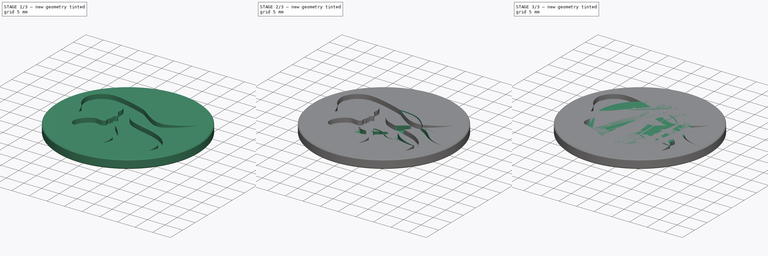
[diagram: build sequence overview — one tinted view per stage of 3, left to right]
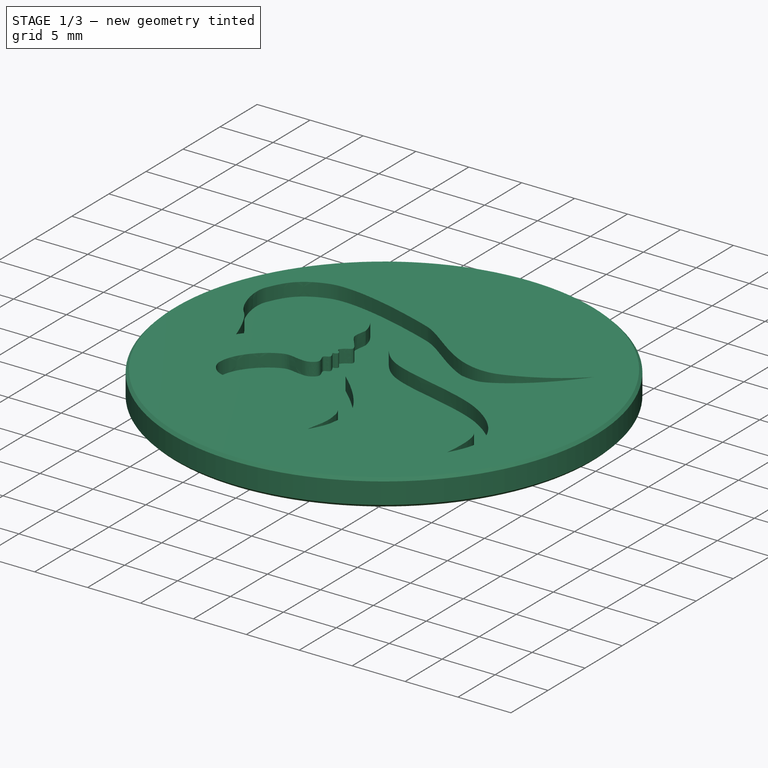
[diagram: stage 1 of 3 — iso view after this stage's code; geometry added in this stage tinted green]
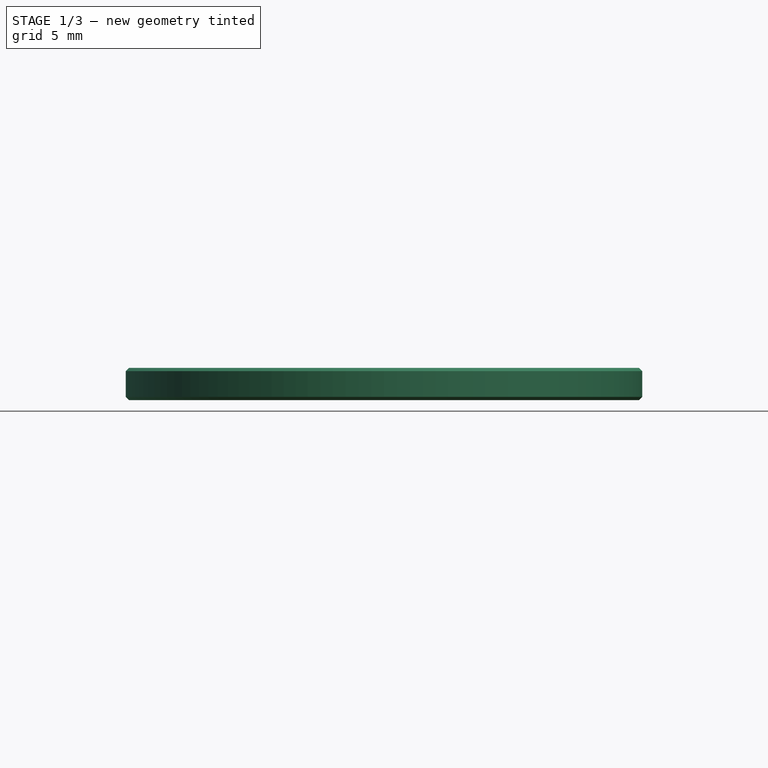
[diagram: stage 1 of 3 — front view after this stage's code; geometry added in this stage tinted green]
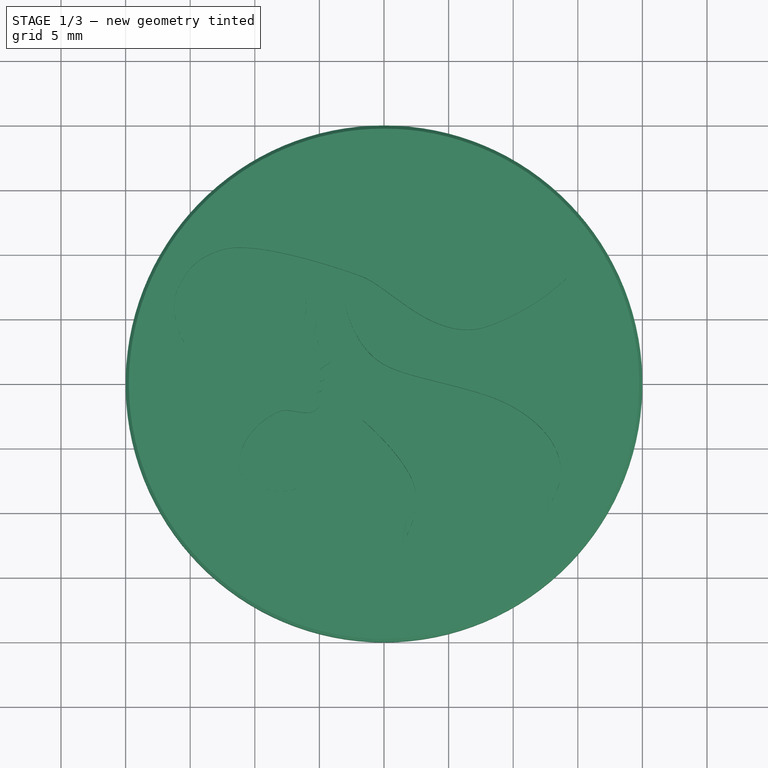
[diagram: stage 1 of 3 — top view after this stage's code; geometry added in this stage tinted green]
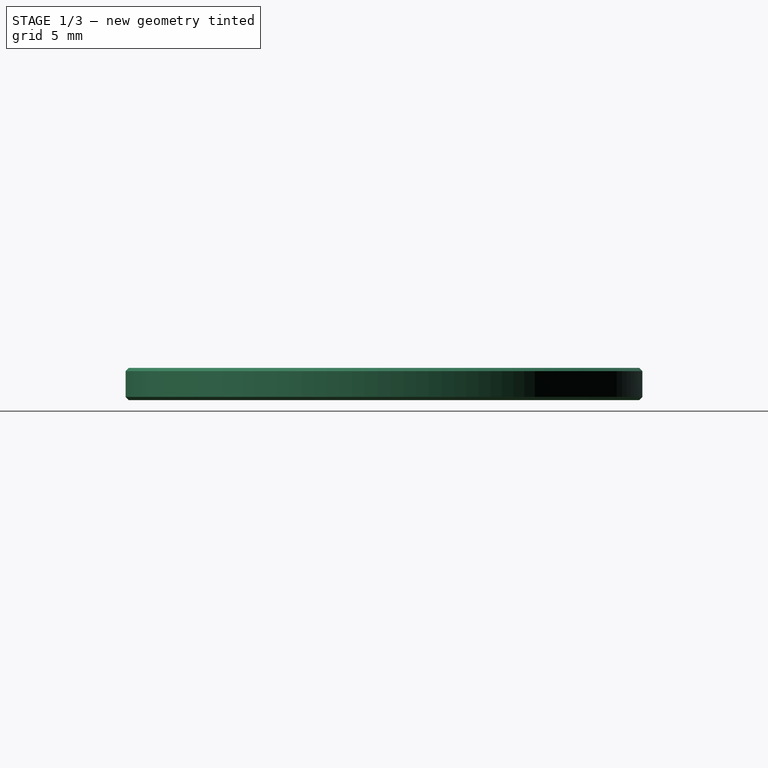
[diagram: stage 1 of 3 — right view after this stage's code; geometry added in this stage tinted green]
FCSTD DOCUMENT  (FreeCAD 0.20R29603 (Git))
Label: woman-hair-coin-44974
License: All rights reserved
LicenseURL: http://en.wikipedia.org/wiki/All_rights_reserved
objects: Sketcher::SketchObject×16, PartDesign::Plane×6, Part::Feature×6, App::DocumentObjectGroup×5, Part::FeaturePython×4, PartDesign::Pocket×4, PartDesign::Revolution×3, PartDesign::Body×3, App::TextDocument×1, Spreadsheet::Sheet×1
note: 49 computed .brp shape members not serialized (recipe doc carries the construction recipe); baked Part::Feature solids carry a one-line shape summary decoded from their .brp

FEATURE [App::TextDocument] Text_document  label="Text document"
  Text = https://publicdomainvectors.org/en/free-clipart/Long-haired-woman/44974.html
FEATURE [Spreadsheet::Sheet] Spreadsheet
  cells = A2=Vector X center; B2=vec_x; C2(dim_vec_x)==-17 mm; A3=Vector Y center; B3=vec_y; C3(dim_vec_y)==11 mm; A4=Coin radius; B4=coin_r; C4(dim_coin_r)==20 mm; A5=Coin height; B5=coin_h; C5(dim_coin_h)==2.5 mm; D5==2.5 mm; A6=Engrave depth; B6=engrave_h; C6(dim_engrave_h)==dim_coin_h / 2; A7=Chamfer width; B7=chamfer_w; C7(dim_chamfer_w)==dim_coin_h / 10; A8=Chamfer radius; B8=chamfer_r; C8(dim_chamfer_r)==dim_coin_r - dim_chamfer_w; A9=SVG Scale; B9=svg_scale; C9(svg_scale)=0.06; A11=Edge dimple radius; B11=dimple_r; C11(dim_dimple_r)==0.5 mm; A12=Edge dimple count; B12=dimple_count; C12(dim_dimple_count)=64; A15=Coin dimensions; A16=40mm novelty diameter; B16=nov_d; C16(dim_nov_d)==40 mm; A17=novelty radius; B17=nov_r; C17(dim_nov_r)==dim_nov_d / 2; A18=novelty thickness; B18=nov_thick; C18(dim_nov_thick)==2.5 mm; A19=novelty scale; B19=nov_scale; C19=1; A21=Quarter diameter; B21=qtr_d; C21(dim_qtr_d)==0.955 "; D21==dim_qtr_d; A22=Quarter radius; B22=qtr_r; C22(dim_qtr_r)==dim_qtr_d / 2; D22==dim_qtr_r; A23=Quarter chamfer radius; B23=qtr_cr; C23(dim_qtr_cr)==dim_qtr_r - dim_chamfer_w; A24=Quarter thickness; B24=qtr_thick; C24(dim_qtr_thick)==1.75 mm; A25=Quarter engrave height; B25=qtr_eh; C25(dim_qtr_eh)==dim_qtr_thick / 2; A26=Quarter factor; B26=qtr_x; C26(dim_qtr_x)==dim_qtr_r / dim_nov_r; A28=Euro diameter; B28=euro_d; C28(dim_euro_d)==23.25 mm; A29=Euro radius; B29=euro_r; C29(dim_euro_r)==dim_euro_d / 2; A30=Euro chamfer radius; B30=euro_cr; C30(dim_euro_cr)==dim_euro_r - dim_chamfer_w; A31=Euro thickness; B31=euro_thick; C31(dim_euro_thick)==2.33 mm; A32=Euro engrave height; B32=euro_eh; C32(dim_euro_eh)==dim_euro_thick / 2; A33=Euro mass; C33==7.5 g; A34=Euro factor; B34=euro_x; C34(dim_euro_x)==dim_euro_r / dim_nov_r; A35=Euro scale; B35=euro_scale; A37=Spanish doubloon diameter; B37=doubloon_d; C37(dim_doubloon_d)==0.75 "; A38=Doubloon radius; B38=doubloon_r; C38(dim_doubloon_r)==dim_doubloon_d / 2; A39=Doubloon thickness; B39=doubloon_thick; A40=Doubloon mass; C40==6.766 g; D40=0.218 troy ou; E40=6.2 g gold; A41=Doubloon scale; B41=doubloon scale; A43=US novelty diameter; C43(us_nov_d)==1.5 "
FEATURE [PartDesign::Plane] DatumPlane  label="BaseXYDatumPlane"
  Length = 60
  MapMode = 5
  ResizeMode = 0
  Support = -> [XY_Plane]
  Width = 60
FEATURE [Sketcher::SketchObject] Sketch001  label="CircleSketch"
  FullyConstrained = true
  MapMode = 5
  Support = -> [DatumPlane]
  expr: Constraints[1] = Spreadsheet.dim_chamfer_r
  expr: Constraints[3] = Spreadsheet.dim_coin_r - 1 mm
  sketch-geometry (6):
    g0: Circle CenterX=0 CenterY=0 CenterZ=0 NormalX=0 NormalY=0 NormalZ=1 AngleXU=0 Radius=19.75
    g1: Circle CenterX=0 CenterY=0 CenterZ=0 NormalX=0 NormalY=0 NormalZ=1 AngleXU=0 Radius=19
    g2: LineSegment StartX=0 StartY=0 StartZ=0 EndX=0 EndY=19 EndZ=0
    g3: LineSegment StartX=0 StartY=0 StartZ=0 EndX=0 EndY=-19 EndZ=0
    g4: LineSegment StartX=0 StartY=0 StartZ=0 EndX=-19 EndY=0 EndZ=0
    g5: LineSegment StartX=0 StartY=0 StartZ=0 EndX=19 EndY=0 EndZ=0
  constraints (16):
    c: Coincident(g0,g-1)
    c: Radius(g0) = 19.75
    c: Coincident(g1,g0)
    c: Radius(g1) = 19
    c: Coincident(g2,g0)
    c: PointOnObject(g2,g1)
    c: Vertical(g2)
    c: Coincident(g3,g0)
    c: PointOnObject(g3,g1)
    c: Vertical(g3)
    c: Coincident(g4,g0)
    c: PointOnObject(g4,g1)
    c: Horizontal(g4)
    c: Coincident(g5,g0)
    c: PointOnObject(g5,g1)
    c: Horizontal(g5)
FEATURE [PartDesign::Plane] DatumPlane001  label="ProfileYZDatumPlane"
  Length = 60
  MapMode = 5
  Placement = pos=(0,0,0) rot=(0.57735,0.57735,0.57735;2.0944rad)
  ResizeMode = 0
  Support = -> [YZ_Plane]
  Width = 60
FEATURE [Sketcher::SketchObject] Sketch  label="CoinProfileSketch"
  FullyConstrained = true
  MapMode = 5
  Placement = pos=(0,0,0) rot=(0.57735,0.57735,0.57735;2.0944rad)
  Support = -> [DatumPlane001]
  expr: Constraints[10] = Spreadsheet.dim_chamfer_w
  expr: Constraints[12] = Spreadsheet.dim_coin_h
  expr: Constraints[13] = Spreadsheet.dim_coin_r
  expr: Constraints[14] = Spreadsheet.dim_coin_r
  expr: Constraints[15] = Spreadsheet.dim_coin_h
  expr: Constraints[16] = Spreadsheet.dim_chamfer_r
  sketch-geometry (11):
    g0: LineSegment StartX=0 StartY=0 StartZ=0 EndX=0 EndY=-2.5 EndZ=0
    g1: LineSegment StartX=19.75 StartY=0 StartZ=0 EndX=20 EndY=-0.25 EndZ=0
    g2: LineSegment StartX=20 StartY=-0.25 StartZ=0 EndX=20 EndY=-2.25 EndZ=0
    g3: LineSegment StartX=20.25 StartY=0 StartZ=0 EndX=20 EndY=0 EndZ=0
    g4: LineSegment StartX=20 StartY=0 StartZ=0 EndX=20 EndY=-0.25 EndZ=0
    g5: LineSegment StartX=20 StartY=-2.25 StartZ=0 EndX=20 EndY=-2.5 EndZ=0
    g6: LineSegment StartX=0 StartY=0 StartZ=0 EndX=19.75 EndY=0 EndZ=0
    g7: LineSegment StartX=19.75 StartY=0 StartZ=0 EndX=20 EndY=0 EndZ=0
    g8: LineSegment StartX=20 StartY=-2.5 StartZ=0 EndX=19.75 EndY=-2.5 EndZ=0
    g9: LineSegment StartX=19.75 StartY=-2.5 StartZ=0 EndX=0 EndY=-2.5 EndZ=0
    g10: LineSegment StartX=19.75 StartY=-2.5 StartZ=0 EndX=20 EndY=-2.25 EndZ=0
  constraints (31):
    c: Vertical(g0)
    c: Coincident(g1,g2)
    c: Vertical(g2)
    c: Horizontal(g3)
    c: Coincident(g4,g3)
    c: Coincident(g4,g1)
    c: Coincident(g5,g2)
    c: Vertical(g5)
    c: Vertical(g4)
    c: Equal(g3,g4)
    c: DistanceY(g5,g5) = 0.25
    c: Equal(g5,g4)
    c: DistanceY(g5,g3) = 2.5
    c: DistanceX(g0,g5) = 20
    c: DistanceX(g-1,g3) = 20
    c: DistanceY(g0,g-1) = 2.5
    c: DistanceX(g1) = 19.75
    c: Coincident(g6,g0)
    c: Coincident(g6,g1)
    c: Horizontal(g6)
    c: Coincident(g7,g1)
    c: Coincident(g7,g3)
    c: Horizontal(g7)
    c: Coincident(g8,g5)
    c: Horizontal(g8)
    c: Coincident(g9,g8)
    c: Coincident(g9,g0)
    c: Horizontal(g9)
    c: Coincident(g10,g9)
    c: Coincident(g10,g2)
    c: Equal(g9,g6)
FEATURE [PartDesign::Revolution] Revolution  label="CoinRevolution"
  Angle = 360
  Axis = (-1e-16,1e-16,1)
  Base = (0,0,0)
  Placement = pos=(0,0,0) rot=(0.57735,0.57735,0.57735;2.0944rad)
  Profile = -> Sketch
  ReferenceAxis = -> Sketch [V_Axis]
  Reversed = true
FEATURE [Sketcher::SketchObject] Sketch012  label="EuroCircleSketch"
  FullyConstrained = true
  MapMode = 5
  Support = -> [DatumPlane004]
  expr: Constraints[1] = Spreadsheet.dim_euro_cr
  expr: Constraints[3] = Spreadsheet.dim_euro_r - 1 mm
  sketch-geometry (6):
    g0: Circle CenterX=0 CenterY=0 CenterZ=0 NormalX=0 NormalY=0 NormalZ=1 AngleXU=0 Radius=11.375
    g1: Circle CenterX=0 CenterY=0 CenterZ=0 NormalX=0 NormalY=0 NormalZ=1 AngleXU=0 Radius=10.625
    g2: LineSegment StartX=0 StartY=0 StartZ=0 EndX=0 EndY=10.625 EndZ=0
    g3: LineSegment StartX=0 StartY=0 StartZ=0 EndX=0 EndY=-10.625 EndZ=0
    g4: LineSegment StartX=0 StartY=0 StartZ=0 EndX=-10.625 EndY=0 EndZ=0
    g5: LineSegment StartX=0 StartY=0 StartZ=0 EndX=10.625 EndY=0 EndZ=0
  constraints (16):
    c: Coincident(g0,g-1)
    c: Radius(g0) = 11.375
    c: Coincident(g1,g0)
    c: Radius(g1) = 10.625
    c: Coincident(g2,g0)
    c: PointOnObject(g2,g1)
    c: Vertical(g2)
    c: Coincident(g3,g0)
    c: PointOnObject(g3,g1)
    c: Vertical(g3)
    c: Coincident(g4,g0)
    c: PointOnObject(g4,g1)
    c: Horizontal(g4)
    c: Coincident(g5,g0)
    c: PointOnObject(g5,g1)
    c: Horizontal(g5)
FEATURE [Sketcher::SketchObject] Sketch013  label="EuroEdgeProfileSketch"
  FullyConstrained = true
  MapMode = 5
  Placement = pos=(0,0,0) rot=(0.57735,0.57735,0.57735;2.0944rad)
  Support = -> [DatumPlane005]
  expr: Constraints[10] = Spreadsheet.dim_euro_r
  expr: Constraints[11] = Spreadsheet.dim_euro_thick
  expr: Constraints[17] = Spreadsheet.dim_euro_cr
  expr: Constraints[6] = Spreadsheet.dim_chamfer_w
  expr: Constraints[8] = Spreadsheet.dim_euro_thick
  sketch-geometry (13):
    g0: LineSegment StartX=0 StartY=-2e-16 StartZ=0 EndX=0 EndY=-2.33 EndZ=0
    g1: LineSegment StartX=11.625 StartY=-0.25 StartZ=0 EndX=11.625 EndY=-2.08 EndZ=0
    g2: LineSegment StartX=11.625 StartY=-2e-16 StartZ=0 EndX=11.625 EndY=-0.25 EndZ=0
    g3: LineSegment StartX=11.625 StartY=-2.08 StartZ=0 EndX=11.625 EndY=-2.33 EndZ=0
    g4: LineSegment StartX=0 StartY=-2e-16 StartZ=0 EndX=10.625 EndY=-2e-16 EndZ=0
    g5: LineSegment StartX=10.625 StartY=-2e-16 StartZ=0 EndX=10.625 EndY=-2.33 EndZ=0
    g6: LineSegment StartX=10.625 StartY=-2e-16 StartZ=0 EndX=11.375 EndY=-2e-16 EndZ=0
    g7: LineSegment StartX=11.375 StartY=-2e-16 StartZ=0 EndX=11.625 EndY=-0.25 EndZ=0
    g8: LineSegment StartX=11.375 StartY=-2e-16 StartZ=0 EndX=11.625 EndY=-2e-16 EndZ=0
    g9: LineSegment StartX=11.625 StartY=-2.33 StartZ=0 EndX=11.375 EndY=-2.33 EndZ=0
    g10: LineSegment StartX=10.625 StartY=-2.33 StartZ=0 EndX=0 EndY=-2.33 EndZ=0
    g11: LineSegment StartX=11.375 StartY=-2.33 StartZ=0 EndX=11.625 EndY=-2.08 EndZ=0
    g12: LineSegment StartX=11.375 StartY=-2.33 StartZ=0 EndX=10.625 EndY=-2.33 EndZ=0
  constraints (37):
    c: Vertical(g0)
    c: Coincident(g0,g4)
    c: Vertical(g1)
    c: Coincident(g3,g1)
    c: Vertical(g3)
    c: Vertical(g2)
    c: DistanceY(g3,g3) = 0.25
    c: Equal(g3,g2)
    c: DistanceY(g3,g2) = 2.33
    c: DistanceX(g0,g3) = 11.625
    c: DistanceX(g-1,g2) = 11.625
    c: DistanceY(g0,g-1) = 2.33
    c: Horizontal(g4)
    c: Vertical(g5)
    c: DistanceX(g4,g2) = 1
    c: Coincident(g6,g5)
    c: Horizontal(g6)
    c: DistanceX(g0,g6) = 11.375
    c: Coincident(g7,g6)
    c: Coincident(g7,g1)
    c: Coincident(g8,g6)
    c: Coincident(g8,g2)
    c: Horizontal(g8)
    c: Coincident(g4,g5)
    c: Coincident(g2,g1)
    c: Coincident(g9,g3)
    c: Horizontal(g9)
    c: Coincident(g10,g5)
    c: Coincident(g10,g0)
    c: Horizontal(g10)
    c: Coincident(g11,g9)
    c: Coincident(g11,g1)
    c: Coincident(g12,g11)
    c: Coincident(g12,g5)
    c: Horizontal(g12)
    c: Equal(g12,g6)
    c: Equal(g8,g2)
FEATURE [Sketcher::SketchObject] Sketch014  label="EuroEdgeDimpleSketch"
  FullyConstrained = true
  MapMode = 5
  Support = -> [DatumPlane004]
  expr: Constraints[2] = Spreadsheet.dim_euro_r
  sketch-geometry (2):
    g0: LineSegment StartX=0 StartY=0 StartZ=0 EndX=11.625 EndY=0 EndZ=0
    g1: Circle CenterX=11.625 CenterY=0 CenterZ=0 NormalX=0 NormalY=0 NormalZ=1 AngleXU=0 Radius=0.5
  constraints (5):
    c: Horizontal(g0)
    c: Coincident(g1,g0)
    c: DistanceX(g0,g0) = 11.625
    c: Coincident(g0,g-1)
    c: Radius(g1) = 0.5
FEATURE [PartDesign::Body] Body002  label="EuroBody"
  Group = -> [DatumPlane004,Sketch012,DatumPlane005,Sketch011,Revolution002,Sketch013,Sketch014]
  Origin = -> Origin002
  Tip = -> Revolution002
FEATURE [Part::Feature] path4200
  shape: bbox 166.5 x 50.88 x 3.397e-07 mm, 0 faces, 0 solids (baked)
FEATURE [Part::Feature] path4206
  shape: bbox 211.8 x 66.21 x 3.397e-07 mm, 0 faces, 0 solids (baked)
FEATURE [App::DocumentObjectGroup] Group010  label="Hair2Group"
  Group = -> [path4206]
FEATURE [Part::Feature] path4224
  shape: bbox 240.4 x 68.97 x 3.397e-07 mm, 0 faces, 0 solids (baked)
FEATURE [Part::Feature] path4230
  shape: bbox 198.3 x 61.69 x 3.397e-07 mm, 0 faces, 0 solids (baked)
FEATURE [App::DocumentObjectGroup] Group009  label="Hair1Group"
  Group = -> [path4200,path4230]
FEATURE [Part::Feature] path4236
  shape: bbox 154.3 x 35.03 x 3.397e-07 mm, 0 faces, 0 solids (baked)
FEATURE [App::DocumentObjectGroup] Group011  label="Hair3Group"
  Group = -> [path4224,path4236]
FEATURE [Part::Feature] path4242
  shape: bbox 339.4 x 258.7 x 3.397e-07 mm, 0 faces, 0 solids (baked)
FEATURE [App::DocumentObjectGroup] Group  label="VectorOutlineGroup"
  Group = -> [path4242]
FEATURE [Part::FeaturePython] Clone005  label="OutlineResize009"  # Draft clone (typed FeaturePython)
  AttacherType = Attacher::AttachEngine3D
  Fuse = false
  Objects = -> [path4242]
  Placement = pos=(-17,11,0) rot=(0,0,1;0rad)
  Scale = (0.09,0.09,0.09)
  expr: .Placement.Base.x = Spreadsheet.dim_vec_x
  expr: .Placement.Base.y = Spreadsheet.dim_vec_y
FEATURE [Part::FeaturePython] Clone006  label="Hair3Resize009"  # Draft clone (typed FeaturePython)
  AttacherType = Attacher::AttachEngine3D
  Fuse = false
  Objects = -> [path4224,path4236]
  Placement = pos=(-17,11,0) rot=(0,0,1;0rad)
  Scale = (0.09,0.09,0.09)
  expr: .Placement.Base.x = Spreadsheet.dim_vec_x
  expr: .Placement.Base.y = Spreadsheet.dim_vec_y
FEATURE [Part::FeaturePython] Clone  label="Hair1Resize009"  # Draft clone (typed FeaturePython)
  AttacherType = Attacher::AttachEngine3D
  Fuse = false
  Objects = -> [path4200,path4230]
  Placement = pos=(-17,11,0) rot=(0,0,1;0rad)
  Scale = (0.09,0.09,0.09)
  expr: .Placement.Base.x = Spreadsheet.dim_vec_x
  expr: .Placement.Base.y = Spreadsheet.dim_vec_y
FEATURE [Part::FeaturePython] Clone007  label="Hair2Resize009"  # Draft clone (typed FeaturePython)
  AttacherType = Attacher::AttachEngine3D
  Fuse = false
  Objects = -> [path4206]
  Placement = pos=(-17,11,0) rot=(0,0,1;0rad)
  Scale = (0.09,0.09,0.09)
  expr: .Placement.Base.x = Spreadsheet.dim_vec_x
  expr: .Placement.Base.y = Spreadsheet.dim_vec_y
FEATURE [App::DocumentObjectGroup] Group012  label="ResizeGroup"
  Group = -> [Clone005,Clone006,Clone,Clone007]
FEATURE [Sketcher::SketchObject] Sketch015
  FullyConstrained = false
  sketch-geometry (43):
    g0: BSplineCurve PolesCount=4 KnotsCount=2 Degree=3 IsPeriodic=0
    g1: BSplineCurve PolesCount=4 KnotsCount=2 Degree=3 IsPeriodic=0
    g2: BSplineCurve PolesCount=4 KnotsCount=2 Degree=3 IsPeriodic=0
    g3: BSplineCurve PolesCount=4 KnotsCount=2 Degree=3 IsPeriodic=0
    g4: BSplineCurve PolesCount=4 KnotsCount=2 Degree=3 IsPeriodic=0
    g5: BSplineCurve PolesCount=4 KnotsCount=2 Degree=3 IsPeriodic=0
    g6: BSplineCurve PolesCount=4 KnotsCount=2 Degree=3 IsPeriodic=0
    g7: BSplineCurve PolesCount=4 KnotsCount=2 Degree=3 IsPeriodic=0
    g8: BSplineCurve PolesCount=4 KnotsCount=2 Degree=3 IsPeriodic=0
    g9: BSplineCurve PolesCount=4 KnotsCount=2 Degree=3 IsPeriodic=0
    g10: BSplineCurve PolesCount=4 KnotsCount=2 Degree=3 IsPeriodic=0
    g11: BSplineCurve PolesCount=4 KnotsCount=2 Degree=3 IsPeriodic=0
    g12: BSplineCurve PolesCount=4 KnotsCount=2 Degree=3 IsPeriodic=0
    g13: BSplineCurve PolesCount=4 KnotsCount=2 Degree=3 IsPeriodic=0
    g14: BSplineCurve PolesCount=4 KnotsCount=2 Degree=3 IsPeriodic=0
    g15: BSplineCurve PolesCount=4 KnotsCount=2 Degree=3 IsPeriodic=0
    g16: BSplineCurve PolesCount=4 KnotsCount=2 Degree=3 IsPeriodic=0
    g17: BSplineCurve PolesCount=4 KnotsCount=2 Degree=3 IsPeriodic=0
    g18: BSplineCurve PolesCount=4 KnotsCount=2 Degree=3 IsPeriodic=0
    g19: BSplineCurve PolesCount=4 KnotsCount=2 Degree=3 IsPeriodic=0
    g20: BSplineCurve PolesCount=4 KnotsCount=2 Degree=3 IsPeriodic=0
    g21: BSplineCurve PolesCount=4 KnotsCount=2 Degree=3 IsPeriodic=0
    g22: BSplineCurve PolesCount=4 KnotsCount=2 Degree=3 IsPeriodic=0
    g23: BSplineCurve PolesCount=4 KnotsCount=2 Degree=3 IsPeriodic=0
    g24: BSplineCurve PolesCount=4 KnotsCount=2 Degree=3 IsPeriodic=0
    g25: BSplineCurve PolesCount=4 KnotsCount=2 Degree=3 IsPeriodic=0
    g26: BSplineCurve PolesCount=4 KnotsCount=2 Degree=3 IsPeriodic=0
    g27: BSplineCurve PolesCount=4 KnotsCount=2 Degree=3 IsPeriodic=0
    g28: BSplineCurve PolesCount=4 KnotsCount=2 Degree=3 IsPeriodic=0
    g29: BSplineCurve PolesCount=4 KnotsCount=2 Degree=3 IsPeriodic=0
    g30: BSplineCurve PolesCount=4 KnotsCount=2 Degree=3 IsPeriodic=0
    g31: BSplineCurve PolesCount=4 KnotsCount=2 Degree=3 IsPeriodic=0
    g32: BSplineCurve PolesCount=4 KnotsCount=2 Degree=3 IsPeriodic=0
    g33: BSplineCurve PolesCount=4 KnotsCount=2 Degree=3 IsPeriodic=0
    g34: BSplineCurve PolesCount=4 KnotsCount=2 Degree=3 IsPeriodic=0
    g35: BSplineCurve PolesCount=4 KnotsCount=2 Degree=3 IsPeriodic=0
    g36: BSplineCurve PolesCount=4 KnotsCount=2 Degree=3 IsPeriodic=0
    g37: BSplineCurve PolesCount=4 KnotsCount=2 Degree=3 IsPeriodic=0
    g38: BSplineCurve PolesCount=4 KnotsCount=2 Degree=3 IsPeriodic=0
    g39: BSplineCurve PolesCount=4 KnotsCount=2 Degree=3 IsPeriodic=0
    g40: BSplineCurve PolesCount=4 KnotsCount=2 Degree=3 IsPeriodic=0
    g41: BSplineCurve PolesCount=4 KnotsCount=2 Degree=3 IsPeriodic=0
    g42: BSplineCurve PolesCount=2 KnotsCount=2 Degree=1 IsPeriodic=0
  constraints (43):
    c: Coincident(g0,g1)
    c: Coincident(g1,g2)
    c: Coincident(g2,g3)
    c: Coincident(g3,g4)
    c: Coincident(g4,g5)
    c: Coincident(g5,g6)
    c: Coincident(g6,g7)
    c: Coincident(g7,g8)
    c: Coincident(g8,g9)
    c: Coincident(g9,g10)
    c: Coincident(g10,g11)
    c: Coincident(g11,g12)
    c: Coincident(g12,g13)
    c: Coincident(g13,g14)
    c: Coincident(g14,g15)
    c: Coincident(g15,g16)
    c: Coincident(g16,g17)
    c: Coincident(g17,g18)
    c: Coincident(g18,g19)
    c: Coincident(g19,g20)
    c: Coincident(g20,g21)
    c: Coincident(g21,g22)
    c: Coincident(g22,g23)
    c: Coincident(g23,g24)
    c: Coincident(g24,g25)
    c: Coincident(g25,g26)
    c: Coincident(g26,g27)
    c: Coincident(g27,g28)
    c: Coincident(g28,g29)
    c: Coincident(g29,g30)
    c: Coincident(g30,g31)
    c: Coincident(g31,g32)
    c: Coincident(g32,g33)
    c: Coincident(g33,g34)
    c: Coincident(g34,g35)
    c: Coincident(g35,g36)
    c: Coincident(g36,g37)
    c: Coincident(g37,g38)
    c: Coincident(g38,g39)
    c: Coincident(g39,g40)
    c: Coincident(g40,g41)
    c: Coincident(g41,g42)
    c: Coincident(g42,g0)
FEATURE [Sketcher::SketchObject] Sketch016
  FullyConstrained = false
  sketch-geometry (36):
    g0: BSplineCurve PolesCount=4 KnotsCount=2 Degree=3 IsPeriodic=0
    g1: BSplineCurve PolesCount=4 KnotsCount=2 Degree=3 IsPeriodic=0
    g2: BSplineCurve PolesCount=4 KnotsCount=2 Degree=3 IsPeriodic=0
    g3: BSplineCurve PolesCount=4 KnotsCount=2 Degree=3 IsPeriodic=0
    g4: BSplineCurve PolesCount=4 KnotsCount=2 Degree=3 IsPeriodic=0
    g5: BSplineCurve PolesCount=4 KnotsCount=2 Degree=3 IsPeriodic=0
    g6: BSplineCurve PolesCount=4 KnotsCount=2 Degree=3 IsPeriodic=0
    g7: BSplineCurve PolesCount=4 KnotsCount=2 Degree=3 IsPeriodic=0
    g8: BSplineCurve PolesCount=4 KnotsCount=2 Degree=3 IsPeriodic=0
    g9: BSplineCurve PolesCount=4 KnotsCount=2 Degree=3 IsPeriodic=0
    g10: BSplineCurve PolesCount=4 KnotsCount=2 Degree=3 IsPeriodic=0
    g11: BSplineCurve PolesCount=4 KnotsCount=2 Degree=3 IsPeriodic=0
    g12: BSplineCurve PolesCount=4 KnotsCount=2 Degree=3 IsPeriodic=0
    g13: BSplineCurve PolesCount=4 KnotsCount=2 Degree=3 IsPeriodic=0
    g14: BSplineCurve PolesCount=4 KnotsCount=2 Degree=3 IsPeriodic=0
    g15: BSplineCurve PolesCount=4 KnotsCount=2 Degree=3 IsPeriodic=0
    g16: BSplineCurve PolesCount=4 KnotsCount=2 Degree=3 IsPeriodic=0
    g17: BSplineCurve PolesCount=4 KnotsCount=2 Degree=3 IsPeriodic=0
    g18: BSplineCurve PolesCount=4 KnotsCount=2 Degree=3 IsPeriodic=0
    g19: BSplineCurve PolesCount=4 KnotsCount=2 Degree=3 IsPeriodic=0
    g20: BSplineCurve PolesCount=2 KnotsCount=2 Degree=1 IsPeriodic=0
    g21: BSplineCurve PolesCount=4 KnotsCount=2 Degree=3 IsPeriodic=0
    g22: BSplineCurve PolesCount=4 KnotsCount=2 Degree=3 IsPeriodic=0
    g23: BSplineCurve PolesCount=4 KnotsCount=2 Degree=3 IsPeriodic=0
    g24: BSplineCurve PolesCount=4 KnotsCount=2 Degree=3 IsPeriodic=0
    g25: BSplineCurve PolesCount=4 KnotsCount=2 Degree=3 IsPeriodic=0
    g26: BSplineCurve PolesCount=4 KnotsCount=2 Degree=3 IsPeriodic=0
    g27: BSplineCurve PolesCount=4 KnotsCount=2 Degree=3 IsPeriodic=0
    g28: BSplineCurve PolesCount=4 KnotsCount=2 Degree=3 IsPeriodic=0
    g29: BSplineCurve PolesCount=4 KnotsCount=2 Degree=3 IsPeriodic=0
    g30: BSplineCurve PolesCount=4 KnotsCount=2 Degree=3 IsPeriodic=0
    g31: BSplineCurve PolesCount=4 KnotsCount=2 Degree=3 IsPeriodic=0
    g32: BSplineCurve PolesCount=4 KnotsCount=2 Degree=3 IsPeriodic=0
    g33: BSplineCurve PolesCount=4 KnotsCount=2 Degree=3 IsPeriodic=0
    g34: BSplineCurve PolesCount=4 KnotsCount=2 Degree=3 IsPeriodic=0
    g35: BSplineCurve PolesCount=2 KnotsCount=2 Degree=1 IsPeriodic=0
  constraints (36):
    c: Coincident(g0,g1)
    c: Coincident(g1,g2)
    c: Coincident(g2,g3)
    c: Coincident(g3,g4)
    c: Coincident(g4,g5)
    c: Coincident(g5,g6)
    c: Coincident(g6,g7)
    c: Coincident(g7,g8)
    c: Coincident(g8,g9)
    c: Coincident(g9,g10)
    c: Coincident(g10,g11)
    c: Coincident(g11,g12)
    c: Coincident(g12,g13)
    c: Coincident(g13,g14)
    c: Coincident(g14,g15)
    c: Coincident(g15,g16)
    c: Coincident(g16,g17)
    c: Coincident(g17,g18)
    c: Coincident(g18,g19)
    c: Coincident(g19,g20)
    c: Coincident(g20,g0)
    c: Coincident(g21,g22)
    c: Coincident(g22,g23)
    c: Coincident(g23,g24)
    c: Coincident(g24,g25)
    c: Coincident(g25,g26)
    c: Coincident(g26,g27)
    c: Coincident(g27,g28)
    c: Coincident(g28,g29)
    c: Coincident(g29,g30)
    c: Coincident(g30,g31)
    c: Coincident(g31,g32)
    c: Coincident(g32,g33)
    c: Coincident(g33,g34)
    c: Coincident(g34,g35)
    c: Coincident(g35,g21)
FEATURE [Sketcher::SketchObject] Sketch017
  FullyConstrained = false
  sketch-geometry (30):
    g0: BSplineCurve PolesCount=2 KnotsCount=2 Degree=1 IsPeriodic=0
    g1: BSplineCurve PolesCount=4 KnotsCount=2 Degree=3 IsPeriodic=0
    g2: BSplineCurve PolesCount=4 KnotsCount=2 Degree=3 IsPeriodic=0
    g3: BSplineCurve PolesCount=4 KnotsCount=2 Degree=3 IsPeriodic=0
    g4: BSplineCurve PolesCount=4 KnotsCount=2 Degree=3 IsPeriodic=0
    g5: BSplineCurve PolesCount=4 KnotsCount=2 Degree=3 IsPeriodic=0
    g6: BSplineCurve PolesCount=4 KnotsCount=2 Degree=3 IsPeriodic=0
    g7: BSplineCurve PolesCount=4 KnotsCount=2 Degree=3 IsPeriodic=0
    g8: BSplineCurve PolesCount=4 KnotsCount=2 Degree=3 IsPeriodic=0
    g9: BSplineCurve PolesCount=4 KnotsCount=2 Degree=3 IsPeriodic=0
    g10: BSplineCurve PolesCount=4 KnotsCount=2 Degree=3 IsPeriodic=0
    g11: BSplineCurve PolesCount=4 KnotsCount=2 Degree=3 IsPeriodic=0
    g12: BSplineCurve PolesCount=4 KnotsCount=2 Degree=3 IsPeriodic=0
    g13: BSplineCurve PolesCount=4 KnotsCount=2 Degree=3 IsPeriodic=0
    g14: BSplineCurve PolesCount=4 KnotsCount=2 Degree=3 IsPeriodic=0
    g15: BSplineCurve PolesCount=4 KnotsCount=2 Degree=3 IsPeriodic=0
    g16: BSplineCurve PolesCount=4 KnotsCount=2 Degree=3 IsPeriodic=0
    g17: BSplineCurve PolesCount=2 KnotsCount=2 Degree=1 IsPeriodic=0
    g18: BSplineCurve PolesCount=2 KnotsCount=2 Degree=1 IsPeriodic=0
    g19: BSplineCurve PolesCount=4 KnotsCount=2 Degree=3 IsPeriodic=0
    g20: BSplineCurve PolesCount=4 KnotsCount=2 Degree=3 IsPeriodic=0
    g21: BSplineCurve PolesCount=4 KnotsCount=2 Degree=3 IsPeriodic=0
    g22: BSplineCurve PolesCount=4 KnotsCount=2 Degree=3 IsPeriodic=0
    g23: BSplineCurve PolesCount=4 KnotsCount=2 Degree=3 IsPeriodic=0
    g24: BSplineCurve PolesCount=4 KnotsCount=2 Degree=3 IsPeriodic=0
    g25: BSplineCurve PolesCount=4 KnotsCount=2 Degree=3 IsPeriodic=0
    g26: BSplineCurve PolesCount=4 KnotsCount=2 Degree=3 IsPeriodic=0
    g27: BSplineCurve PolesCount=4 KnotsCount=2 Degree=3 IsPeriodic=0
    g28: BSplineCurve PolesCount=4 KnotsCount=2 Degree=3 IsPeriodic=0
    g29: BSplineCurve PolesCount=2 KnotsCount=2 Degree=1 IsPeriodic=0
  constraints (30):
    c: Coincident(g0,g1)
    c: Coincident(g1,g2)
    c: Coincident(g2,g3)
    c: Coincident(g3,g4)
    c: Coincident(g4,g5)
    c: Coincident(g5,g6)
    c: Coincident(g6,g7)
    c: Coincident(g7,g8)
    c: Coincident(g8,g9)
    c: Coincident(g9,g10)
    c: Coincident(g10,g11)
    c: Coincident(g11,g12)
    c: Coincident(g12,g13)
    c: Coincident(g13,g14)
    c: Coincident(g14,g15)
    c: Coincident(g15,g16)
    c: Coincident(g16,g17)
    c: Coincident(g17,g18)
    c: Coincident(g18,g0)
    c: Coincident(g19,g20)
    c: Coincident(g20,g21)
    c: Coincident(g21,g22)
    c: Coincident(g22,g23)
    c: Coincident(g23,g24)
    c: Coincident(g24,g25)
    c: Coincident(g25,g26)
    c: Coincident(g26,g27)
    c: Coincident(g27,g28)
    c: Coincident(g28,g29)
    c: Coincident(g29,g19)
FEATURE [Sketcher::SketchObject] Sketch018
  FullyConstrained = false
  sketch-geometry (13):
    g0: BSplineCurve PolesCount=4 KnotsCount=2 Degree=3 IsPeriodic=0
    g1: BSplineCurve PolesCount=4 KnotsCount=2 Degree=3 IsPeriodic=0
    g2: BSplineCurve PolesCount=4 KnotsCount=2 Degree=3 IsPeriodic=0
    g3: BSplineCurve PolesCount=4 KnotsCount=2 Degree=3 IsPeriodic=0
    g4: BSplineCurve PolesCount=4 KnotsCount=2 Degree=3 IsPeriodic=0
    g5: BSplineCurve PolesCount=4 KnotsCount=2 Degree=3 IsPeriodic=0
    g6: BSplineCurve PolesCount=4 KnotsCount=2 Degree=3 IsPeriodic=0
    g7: BSplineCurve PolesCount=4 KnotsCount=2 Degree=3 IsPeriodic=0
    g8: BSplineCurve PolesCount=4 KnotsCount=2 Degree=3 IsPeriodic=0
    g9: BSplineCurve PolesCount=4 KnotsCount=2 Degree=3 IsPeriodic=0
    g10: BSplineCurve PolesCount=4 KnotsCount=2 Degree=3 IsPeriodic=0
    g11: BSplineCurve PolesCount=4 KnotsCount=2 Degree=3 IsPeriodic=0
    g12: BSplineCurve PolesCount=2 KnotsCount=2 Degree=1 IsPeriodic=0
  constraints (13):
    c: Coincident(g0,g1)
    c: Coincident(g1,g2)
    c: Coincident(g2,g3)
    c: Coincident(g3,g4)
    c: Coincident(g4,g5)
    c: Coincident(g5,g6)
    c: Coincident(g6,g7)
    c: Coincident(g7,g8)
    c: Coincident(g8,g9)
    c: Coincident(g9,g10)
    c: Coincident(g10,g11)
    c: Coincident(g11,g12)
    c: Coincident(g12,g0)
FEATURE [PartDesign::Pocket] Pocket
  BaseFeature = -> Revolution
  Direction = (0,0,-1)
  Length = 1.25
  Length2 = 5
  Placement = pos=(0,0,0) rot=(0.57735,0.57735,0.57735;2.0944rad)
  Profile = -> Sketch015
  ReferenceAxis = -> Sketch015 [N_Axis]
  Type = 0
  expr: Length = Spreadsheet.dim_engrave_h
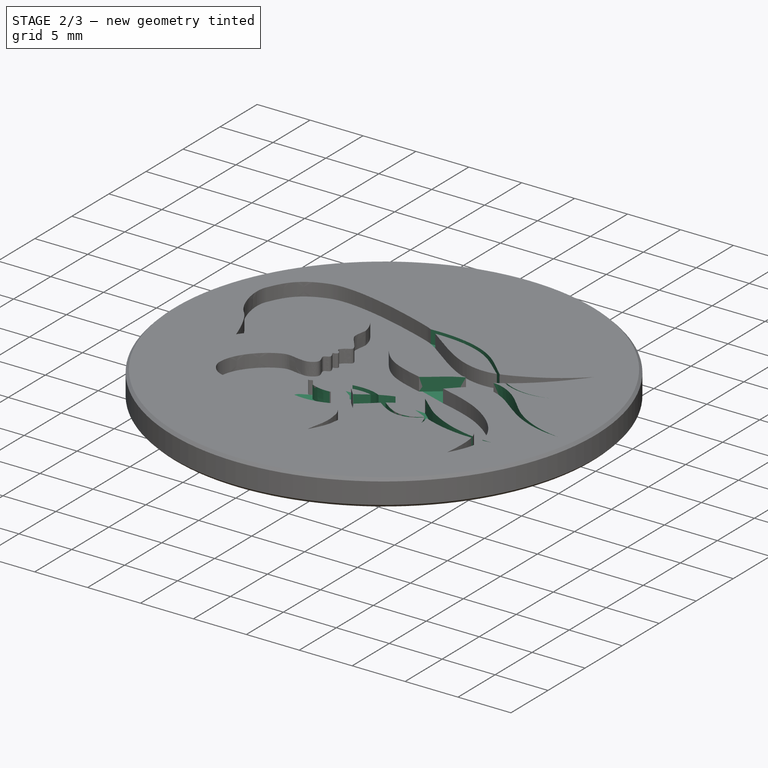
[diagram: stage 2 of 3 — iso view after this stage's code; geometry added in this stage tinted green]
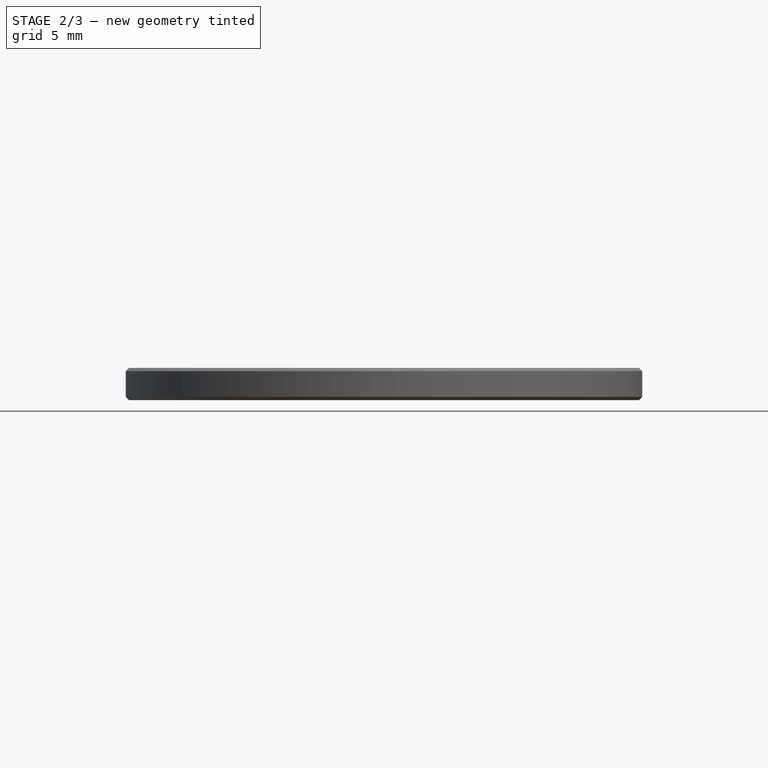
[diagram: stage 2 of 3 — front view after this stage's code; geometry added in this stage tinted green]
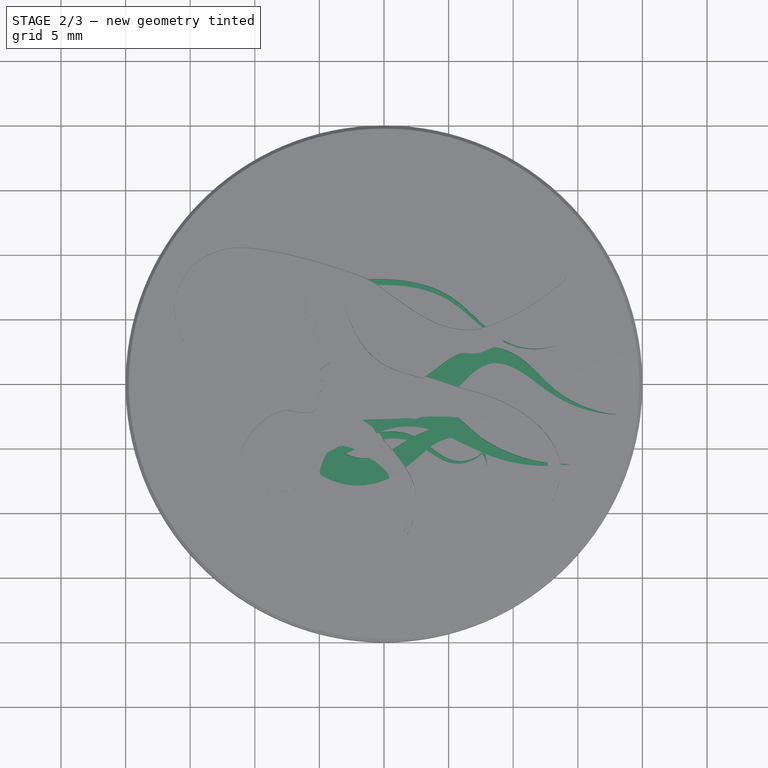
[diagram: stage 2 of 3 — top view after this stage's code; geometry added in this stage tinted green]
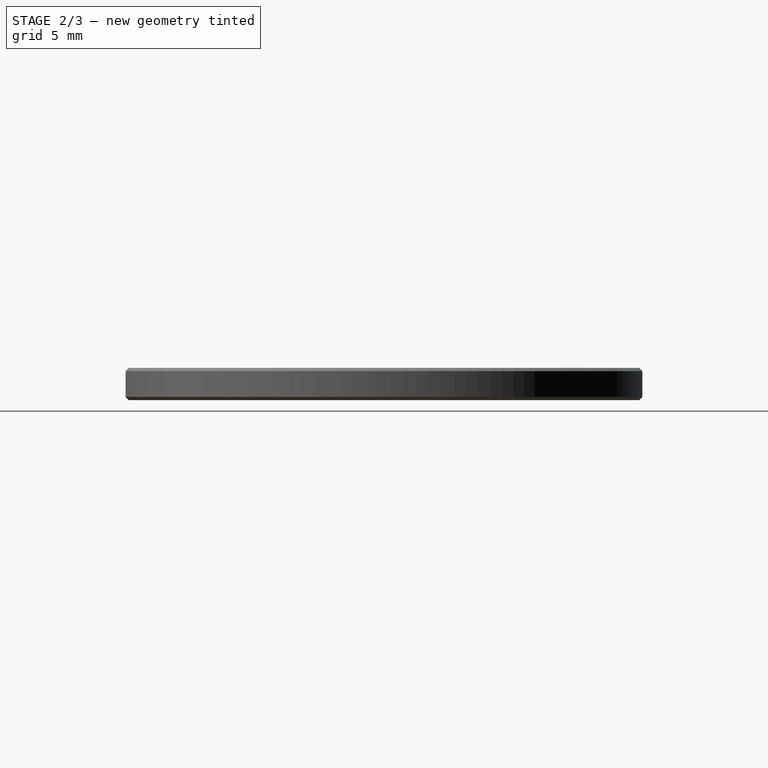
[diagram: stage 2 of 3 — right view after this stage's code; geometry added in this stage tinted green]
FEATURE [PartDesign::Pocket] Pocket001
  BaseFeature = -> Pocket
  Direction = (0,0,-1)
  Length = 1.25
  Length2 = 5
  Placement = pos=(0,0,0) rot=(0.57735,0.57735,0.57735;2.0944rad)
  Profile = -> Sketch016
  ReferenceAxis = -> Sketch016 [N_Axis]
  Type = 0
  expr: Length = Spreadsheet.dim_engrave_h
FEATURE [PartDesign::Pocket] Pocket002
  BaseFeature = -> Pocket001
  Direction = (0,0,-1)
  Length = 1.25
  Length2 = 5
  Placement = pos=(0,0,0) rot=(0.57735,0.57735,0.57735;2.0944rad)
  Profile = -> Sketch017
  ReferenceAxis = -> Sketch017 [N_Axis]
  Type = 0
  expr: Length = Spreadsheet.dim_engrave_h
FEATURE [PartDesign::Pocket] Pocket003
  BaseFeature = -> Pocket002
  Direction = (0,0,-1)
  Length = 1.25
  Length2 = 5
  Placement = pos=(0,0,0) rot=(0.57735,0.57735,0.57735;2.0944rad)
  Profile = -> Sketch018
  ReferenceAxis = -> Sketch018 [N_Axis]
  Type = 0
  expr: Length = Spreadsheet.dim_engrave_h
FEATURE [PartDesign::Body] Body  label="NovBody"
  Group = -> [DatumPlane,Sketch001,DatumPlane001,Sketch,Revolution,Sketch002,Sketch004,Sketch015,Sketch016,Sketch017,Sketch018,Pocket,Pocket001,Pocket002,Pocket003]
  Origin = -> Origin
  Tip = -> Pocket003
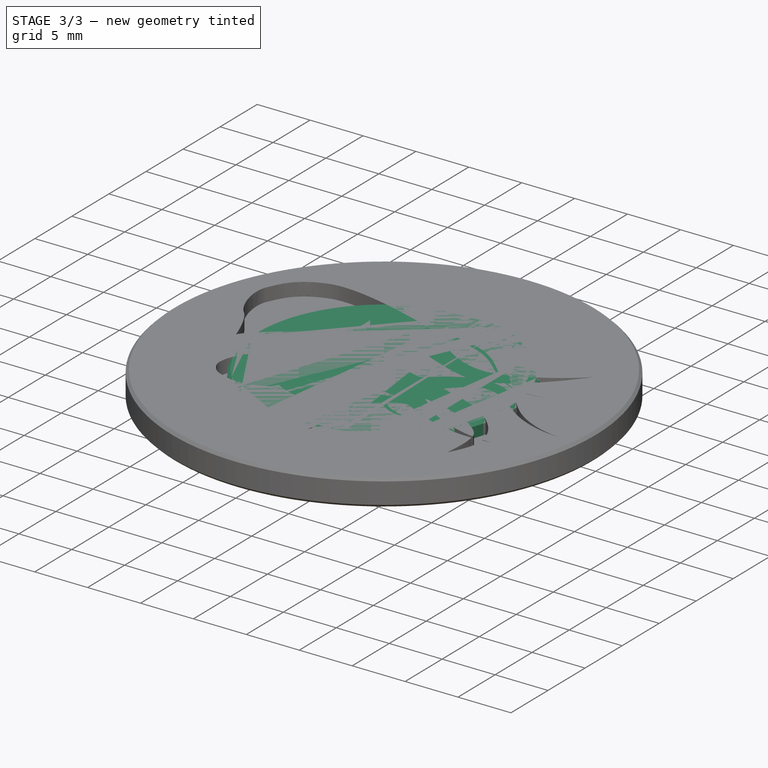
[diagram: stage 3 of 3 — iso view after this stage's code; geometry added in this stage tinted green]
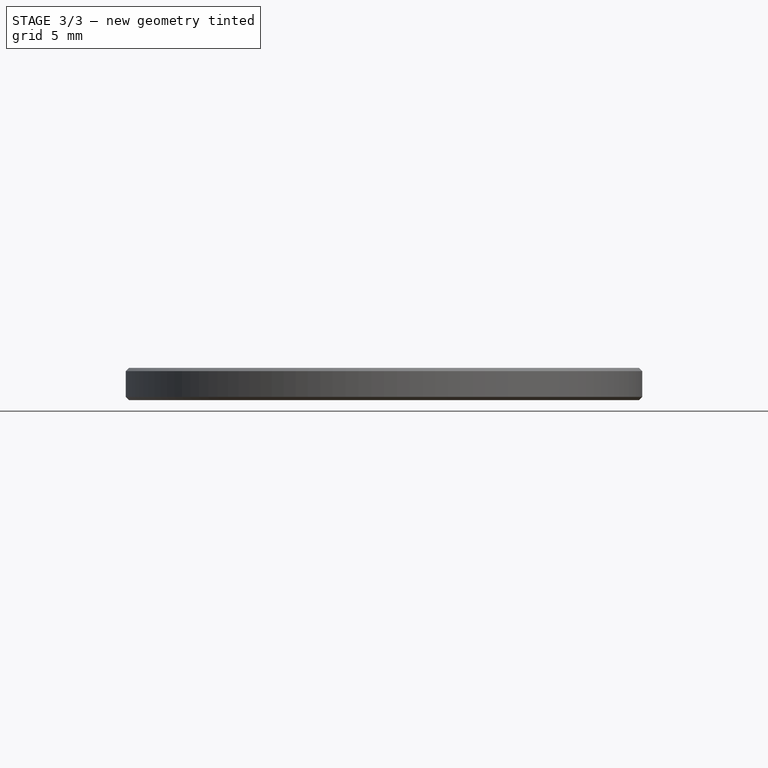
[diagram: stage 3 of 3 — front view after this stage's code; geometry added in this stage tinted green]
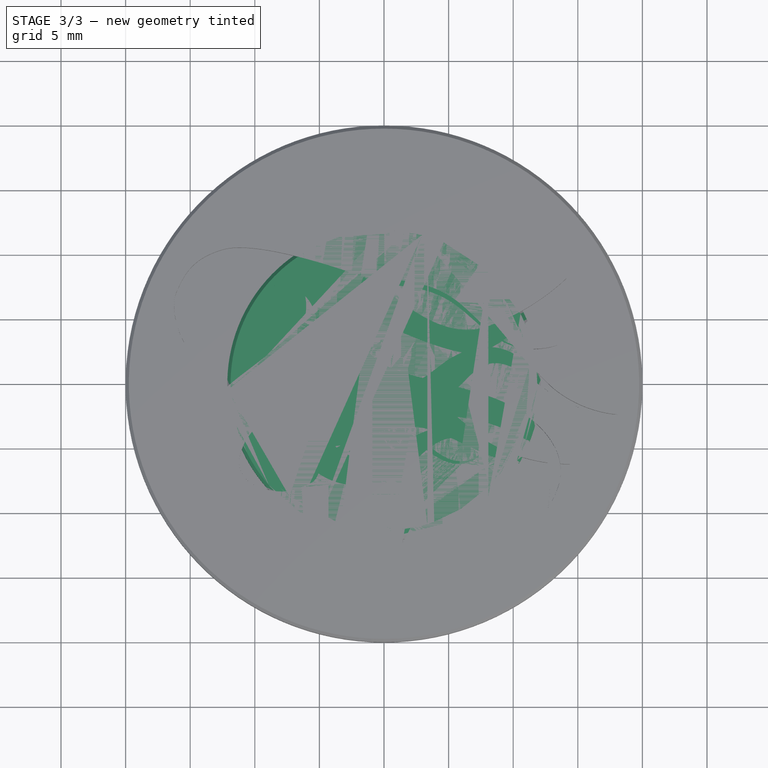
[diagram: stage 3 of 3 — top view after this stage's code; geometry added in this stage tinted green]
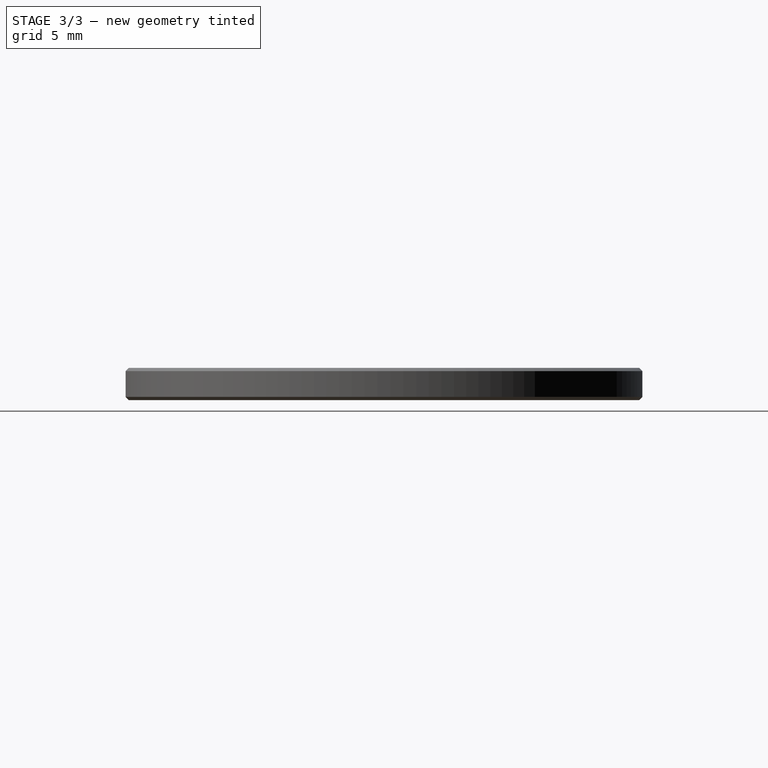
[diagram: stage 3 of 3 — right view after this stage's code; geometry added in this stage tinted green]
FEATURE [Sketcher::SketchObject] Sketch002  label="CoinEdgeProfileSketch"
  FullyConstrained = true
  MapMode = 5
  Placement = pos=(0,0,0) rot=(0.57735,0.57735,0.57735;2.0944rad)
  Support = -> [DatumPlane001]
  expr: Constraints[10] = Spreadsheet.dim_coin_r
  expr: Constraints[11] = Spreadsheet.dim_coin_h
  expr: Constraints[17] = Spreadsheet.dim_chamfer_r
  expr: Constraints[6] = Spreadsheet.dim_chamfer_w
  expr: Constraints[8] = Spreadsheet.dim_coin_h
  expr: Constraints[9] = Spreadsheet.dim_coin_r
  sketch-geometry (13):
    g0: LineSegment StartX=0 StartY=2e-16 StartZ=0 EndX=0 EndY=-2.5 EndZ=0
    g1: LineSegment StartX=20 StartY=-0.25 StartZ=0 EndX=20 EndY=-2.25 EndZ=0
    g2: LineSegment StartX=20 StartY=2e-16 StartZ=0 EndX=20 EndY=-0.25 EndZ=0
    g3: LineSegment StartX=20 StartY=-2.25 StartZ=0 EndX=20 EndY=-2.5 EndZ=0
    g4: LineSegment StartX=0 StartY=2e-16 StartZ=0 EndX=19 EndY=2e-16 EndZ=0
    g5: LineSegment StartX=19 StartY=2e-16 StartZ=0 EndX=19 EndY=-2.5 EndZ=0
    g6: LineSegment StartX=19 StartY=2e-16 StartZ=0 EndX=19.75 EndY=2e-16 EndZ=0
    g7: LineSegment StartX=19.75 StartY=2e-16 StartZ=0 EndX=20 EndY=-0.25 EndZ=0
    g8: LineSegment StartX=19.75 StartY=2e-16 StartZ=0 EndX=20 EndY=2e-16 EndZ=0
    g9: LineSegment StartX=20 StartY=-2.5 StartZ=0 EndX=19.75 EndY=-2.5 EndZ=0
    g10: LineSegment StartX=19 StartY=-2.5 StartZ=0 EndX=0 EndY=-2.5 EndZ=0
    g11: LineSegment StartX=19.75 StartY=-2.5 StartZ=0 EndX=20 EndY=-2.25 EndZ=0
    g12: LineSegment StartX=19.75 StartY=-2.5 StartZ=0 EndX=19 EndY=-2.5 EndZ=0
  constraints (36):
    c: Vertical(g0)
    c: Coincident(g0,g4)
    c: Vertical(g1)
    c: Coincident(g3,g1)
    c: Vertical(g3)
    c: Vertical(g2)
    c: DistanceY(g3,g3) = 0.25
    c: Equal(g3,g2)
    c: DistanceY(g3,g2) = 2.5
    c: DistanceX(g0,g3) = 20
    c: DistanceX(g-1,g2) = 20
    c: DistanceY(g0,g-1) = 2.5
    c: Horizontal(g4)
    c: Vertical(g5)
    c: DistanceX(g4,g2) = 1
    c: Coincident(g6,g5)
    c: Horizontal(g6)
    c: DistanceX(g0,g6) = 19.75
    c: Coincident(g7,g6)
    c: Coincident(g7,g1)
    c: Coincident(g8,g6)
    c: Coincident(g8,g2)
    c: Horizontal(g8)
    c: Coincident(g4,g5)
    c: Coincident(g2,g1)
    c: Coincident(g9,g3)
    c: Horizontal(g9)
    c: Coincident(g10,g5)
    c: Coincident(g10,g0)
    c: Horizontal(g10)
    c: Coincident(g11,g9)
    c: Coincident(g11,g1)
    c: Coincident(g12,g11)
    c: Coincident(g12,g5)
    c: Horizontal(g12)
    c: Equal(g12,g6)
FEATURE [Sketcher::SketchObject] Sketch004  label="EdgeDimpleSketch"
  FullyConstrained = true
  MapMode = 5
  Support = -> [DatumPlane]
  expr: Constraints[2] = Spreadsheet.dim_coin_r
  sketch-geometry (2):
    g0: LineSegment StartX=0 StartY=0 StartZ=0 EndX=20 EndY=0 EndZ=0
    g1: Circle CenterX=20 CenterY=0 CenterZ=0 NormalX=0 NormalY=0 NormalZ=1 AngleXU=0 Radius=0.5
  constraints (5):
    c: Horizontal(g0)
    c: Coincident(g1,g0)
    c: DistanceX(g0,g0) = 20
    c: Coincident(g0,g-1)
    c: Radius(g1) = 0.5
FEATURE [PartDesign::Plane] DatumPlane002  label="QtrBaseXYDatumPlane"
  Length = 60
  MapMode = 5
  ResizeMode = 0
  Support = -> [XY_Plane001]
  Width = 60
FEATURE [PartDesign::Plane] DatumPlane003  label="ProfileYZDatumPlane001"
  Length = 60
  MapMode = 5
  Placement = pos=(0,0,0) rot=(0.57735,0.57735,0.57735;2.0944rad)
  ResizeMode = 0
  Support = -> [YZ_Plane001]
  Width = 60
FEATURE [Sketcher::SketchObject] Sketch006  label="QtrProfileSketch"
  FullyConstrained = true
  MapMode = 5
  Placement = pos=(0,0,0) rot=(0.57735,0.57735,0.57735;2.0944rad)
  Support = -> [DatumPlane003]
  expr: Constraints[10] = Spreadsheet.dim_chamfer_w
  expr: Constraints[12] = Spreadsheet.dim_qtr_thick
  expr: Constraints[13] = Spreadsheet.dim_qtr_r
  expr: Constraints[14] = Spreadsheet.dim_qtr_r
  expr: Constraints[15] = Spreadsheet.dim_qtr_thick
  expr: Constraints[16] = Spreadsheet.dim_qtr_cr
  sketch-geometry (11):
    g0: LineSegment StartX=0 StartY=0 StartZ=0 EndX=0 EndY=-1.75 EndZ=0
    g1: LineSegment StartX=11.8785 StartY=0 StartZ=0 EndX=12.1285 EndY=-0.25 EndZ=0
    g2: LineSegment StartX=12.1285 StartY=-0.25 StartZ=0 EndX=12.1285 EndY=-1.5 EndZ=0
    g3: LineSegment StartX=12.3785 StartY=0 StartZ=0 EndX=12.1285 EndY=0 EndZ=0
    g4: LineSegment StartX=12.1285 StartY=0 StartZ=0 EndX=12.1285 EndY=-0.25 EndZ=0
    g5: LineSegment StartX=12.1285 StartY=-1.5 StartZ=0 EndX=12.1285 EndY=-1.75 EndZ=0
    g6: LineSegment StartX=0 StartY=0 StartZ=0 EndX=11.8785 EndY=0 EndZ=0
    g7: LineSegment StartX=11.8785 StartY=0 StartZ=0 EndX=12.1285 EndY=0 EndZ=0
    g8: LineSegment StartX=12.1285 StartY=-1.75 StartZ=0 EndX=11.8785 EndY=-1.75 EndZ=0
    g9: LineSegment StartX=11.8785 StartY=-1.75 StartZ=0 EndX=0 EndY=-1.75 EndZ=0
    g10: LineSegment StartX=11.8785 StartY=-1.75 StartZ=0 EndX=12.1285 EndY=-1.5 EndZ=0
  constraints (31):
    c: Vertical(g0)
    c: Coincident(g1,g2)
    c: Vertical(g2)
    c: Horizontal(g3)
    c: Coincident(g4,g3)
    c: Coincident(g4,g1)
    c: Coincident(g5,g2)
    c: Vertical(g5)
    c: Vertical(g4)
    c: Equal(g3,g4)
    c: DistanceY(g5,g5) = 0.25
    c: Equal(g5,g4)
    c: DistanceY(g5,g3) = 1.75
    c: DistanceX(g0,g5) = 12.1285
    c: DistanceX(g-1,g3) = 12.1285
    c: DistanceY(g0,g-1) = 1.75
    c: DistanceX(g1) = 11.8785
    c: Coincident(g6,g0)
    c: Coincident(g6,g1)
    c: Horizontal(g6)
    c: Coincident(g7,g1)
    c: Coincident(g7,g3)
    c: Horizontal(g7)
    c: Coincident(g8,g5)
    c: Horizontal(g8)
    c: Coincident(g9,g8)
    c: Coincident(g9,g0)
    c: Horizontal(g9)
    c: Coincident(g10,g9)
    c: Coincident(g10,g2)
    c: Equal(g9,g6)
FEATURE [PartDesign::Revolution] Revolution001  label="QtrRevolution"
  Angle = 360
  Axis = (-1e-16,1e-16,1)
  Base = (0,0,0)
  Placement = pos=(0,0,0) rot=(0.57735,0.57735,0.57735;2.0944rad)
  Profile = -> Sketch006
  ReferenceAxis = -> Sketch006 [V_Axis]
  Reversed = true
FEATURE [Sketcher::SketchObject] Sketch007  label="QtrCircleSketch"
  FullyConstrained = true
  MapMode = 5
  Support = -> [DatumPlane002]
  expr: Constraints[1] = Spreadsheet.dim_qtr_cr
  expr: Constraints[3] = Spreadsheet.dim_qtr_r - 1 mm
  sketch-geometry (6):
    g0: Circle CenterX=0 CenterY=0 CenterZ=0 NormalX=0 NormalY=0 NormalZ=1 AngleXU=0 Radius=11.8785
    g1: Circle CenterX=0 CenterY=0 CenterZ=0 NormalX=0 NormalY=0 NormalZ=1 AngleXU=0 Radius=11.1285
    g2: LineSegment StartX=0 StartY=0 StartZ=0 EndX=0 EndY=11.1285 EndZ=0
    g3: LineSegment StartX=0 StartY=0 StartZ=0 EndX=0 EndY=-11.1285 EndZ=0
    g4: LineSegment StartX=0 StartY=0 StartZ=0 EndX=-11.1285 EndY=0 EndZ=0
    g5: LineSegment StartX=0 StartY=0 StartZ=0 EndX=11.1285 EndY=0 EndZ=0
  constraints (16):
    c: Coincident(g0,g-1)
    c: Radius(g0) = 11.8785
    c: Coincident(g1,g0)
    c: Radius(g1) = 11.1285
    c: Coincident(g2,g0)
    c: PointOnObject(g2,g1)
    c: Vertical(g2)
    c: Coincident(g3,g0)
    c: PointOnObject(g3,g1)
    c: Vertical(g3)
    c: Coincident(g4,g0)
    c: PointOnObject(g4,g1)
    c: Horizontal(g4)
    c: Coincident(g5,g0)
    c: PointOnObject(g5,g1)
    c: Horizontal(g5)
FEATURE [Sketcher::SketchObject] Sketch008  label="QtrEdgeProfileSketch"
  FullyConstrained = true
  MapMode = 5
  Placement = pos=(0,0,0) rot=(0.57735,0.57735,0.57735;2.0944rad)
  Support = -> [DatumPlane003]
  expr: Constraints[10] = Spreadsheet.dim_qtr_r
  expr: Constraints[11] = Spreadsheet.dim_qtr_thick
  expr: Constraints[17] = Spreadsheet.dim_qtr_cr
  expr: Constraints[6] = Spreadsheet.dim_chamfer_w
  expr: Constraints[8] = Spreadsheet.dim_qtr_thick
  sketch-geometry (13):
    g0: LineSegment StartX=0 StartY=-1e-16 StartZ=0 EndX=0 EndY=-1.75 EndZ=0
    g1: LineSegment StartX=12.1285 StartY=-0.25 StartZ=0 EndX=12.1285 EndY=-1.5 EndZ=0
    g2: LineSegment StartX=12.1285 StartY=-1e-16 StartZ=0 EndX=12.1285 EndY=-0.25 EndZ=0
    g3: LineSegment StartX=12.1285 StartY=-1.5 StartZ=0 EndX=12.1285 EndY=-1.75 EndZ=0
    g4: LineSegment StartX=0 StartY=-1e-16 StartZ=0 EndX=11.1285 EndY=-1e-16 EndZ=0
    g5: LineSegment StartX=11.1285 StartY=-1e-16 StartZ=0 EndX=11.1285 EndY=-1.75 EndZ=0
    g6: LineSegment StartX=11.1285 StartY=-1e-16 StartZ=0 EndX=11.8785 EndY=-1e-16 EndZ=0
    g7: LineSegment StartX=11.8785 StartY=-1e-16 StartZ=0 EndX=12.1285 EndY=-0.25 EndZ=0
    g8: LineSegment StartX=11.8785 StartY=-1e-16 StartZ=0 EndX=12.1285 EndY=-1e-16 EndZ=0
    g9: LineSegment StartX=12.1285 StartY=-1.75 StartZ=0 EndX=11.8785 EndY=-1.75 EndZ=0
    g10: LineSegment StartX=11.1285 StartY=-1.75 StartZ=0 EndX=0 EndY=-1.75 EndZ=0
    g11: LineSegment StartX=11.8785 StartY=-1.75 StartZ=0 EndX=12.1285 EndY=-1.5 EndZ=0
    g12: LineSegment StartX=11.8785 StartY=-1.75 StartZ=0 EndX=11.1285 EndY=-1.75 EndZ=0
  constraints (37):
    c: Vertical(g0)
    c: Coincident(g0,g4)
    c: Vertical(g1)
    c: Coincident(g3,g1)
    c: Vertical(g3)
    c: Vertical(g2)
    c: DistanceY(g3,g3) = 0.25
    c: Equal(g3,g2)
    c: DistanceY(g3,g2) = 1.75
    c: DistanceX(g0,g3) = 12.1285
    c: DistanceX(g-1,g2) = 12.1285
    c: DistanceY(g0,g-1) = 1.75
    c: Horizontal(g4)
    c: Vertical(g5)
    c: DistanceX(g4,g2) = 1
    c: Coincident(g6,g5)
    c: Horizontal(g6)
    c: DistanceX(g0,g6) = 11.8785
    c: Coincident(g7,g6)
    c: Coincident(g7,g1)
    c: Coincident(g8,g6)
    c: Coincident(g8,g2)
    c: Horizontal(g8)
    c: Coincident(g4,g5)
    c: Coincident(g2,g1)
    c: Coincident(g9,g3)
    c: Horizontal(g9)
    c: Coincident(g10,g5)
    c: Coincident(g10,g0)
    c: Horizontal(g10)
    c: Coincident(g11,g9)
    c: Coincident(g11,g1)
    c: Coincident(g12,g11)
    c: Coincident(g12,g5)
    c: Horizontal(g12)
    c: Equal(g12,g6)
    c: Equal(g8,g2)
FEATURE [Sketcher::SketchObject] Sketch009  label="QtrEdgeDimpleSketch"
  FullyConstrained = true
  MapMode = 5
  Support = -> [DatumPlane002]
  expr: Constraints[2] = Spreadsheet.dim_coin_r
  sketch-geometry (2):
    g0: LineSegment StartX=0 StartY=0 StartZ=0 EndX=20 EndY=0 EndZ=0
    g1: Circle CenterX=20 CenterY=0 CenterZ=0 NormalX=0 NormalY=0 NormalZ=1 AngleXU=0 Radius=0.5
  constraints (5):
    c: Horizontal(g0)
    c: Coincident(g1,g0)
    c: DistanceX(g0,g0) = 20
    c: Coincident(g0,g-1)
    c: Radius(g1) = 0.5
FEATURE [PartDesign::Body] Body001  label="QuarterBody"
  Group = -> [DatumPlane002,Sketch007,DatumPlane003,Sketch006,Revolution001,Sketch008,Sketch009]
  Origin = -> Origin001
  Tip = -> Revolution001
FEATURE [PartDesign::Plane] DatumPlane004  label="EuroBaseXYDatumPlane"
  Length = 60
  MapMode = 5
  ResizeMode = 0
  Support = -> [XY_Plane002]
  Width = 60
FEATURE [PartDesign::Plane] DatumPlane005  label="EuroProfileYZDatumPlane"
  Length = 60
  MapMode = 5
  Placement = pos=(0,0,0) rot=(0.57735,0.57735,0.57735;2.0944rad)
  ResizeMode = 0
  Support = -> [YZ_Plane002]
  Width = 60
FEATURE [Sketcher::SketchObject] Sketch011  label="EuroProfileSketch"
  FullyConstrained = true
  MapMode = 5
  Placement = pos=(0,0,0) rot=(0.57735,0.57735,0.57735;2.0944rad)
  Support = -> [DatumPlane005]
  expr: Constraints[10] = Spreadsheet.dim_chamfer_w
  expr: Constraints[12] = Spreadsheet.dim_euro_thick
  expr: Constraints[13] = Spreadsheet.dim_euro_r
  expr: Constraints[14] = Spreadsheet.dim_euro_r
  expr: Constraints[15] = Spreadsheet.dim_euro_thick
  expr: Constraints[16] = Spreadsheet.dim_euro_cr
  sketch-geometry (11):
    g0: LineSegment StartX=0 StartY=1e-16 StartZ=0 EndX=0 EndY=-2.33 EndZ=0
    g1: LineSegment StartX=11.375 StartY=1e-16 StartZ=0 EndX=11.625 EndY=-0.25 EndZ=0
    g2: LineSegment StartX=11.625 StartY=-0.25 StartZ=0 EndX=11.625 EndY=-2.08 EndZ=0
    g3: LineSegment StartX=11.875 StartY=1e-16 StartZ=0 EndX=11.625 EndY=1e-16 EndZ=0
    g4: LineSegment StartX=11.625 StartY=1e-16 StartZ=0 EndX=11.625 EndY=-0.25 EndZ=0
    g5: LineSegment StartX=11.625 StartY=-2.08 StartZ=0 EndX=11.625 EndY=-2.33 EndZ=0
    g6: LineSegment StartX=0 StartY=1e-16 StartZ=0 EndX=11.375 EndY=1e-16 EndZ=0
    g7: LineSegment StartX=11.375 StartY=1e-16 StartZ=0 EndX=11.625 EndY=1e-16 EndZ=0
    g8: LineSegment StartX=11.625 StartY=-2.33 StartZ=0 EndX=11.375 EndY=-2.33 EndZ=0
    g9: LineSegment StartX=11.375 StartY=-2.33 StartZ=0 EndX=0 EndY=-2.33 EndZ=0
    g10: LineSegment StartX=11.375 StartY=-2.33 StartZ=0 EndX=11.625 EndY=-2.08 EndZ=0
  constraints (31):
    c: Vertical(g0)
    c: Coincident(g1,g2)
    c: Vertical(g2)
    c: Horizontal(g3)
    c: Coincident(g4,g3)
    c: Coincident(g4,g1)
    c: Coincident(g5,g2)
    c: Vertical(g5)
    c: Vertical(g4)
    c: Equal(g3,g4)
    c: DistanceY(g5,g5) = 0.25
    c: Equal(g5,g4)
    c: DistanceY(g5,g3) = 2.33
    c: DistanceX(g0,g5) = 11.625
    c: DistanceX(g-1,g3) = 11.625
    c: DistanceY(g0,g-1) = 2.33
    c: DistanceX(g1) = 11.375
    c: Coincident(g6,g0)
    c: Coincident(g6,g1)
    c: Horizontal(g6)
    c: Coincident(g7,g1)
    c: Coincident(g7,g3)
    c: Horizontal(g7)
    c: Coincident(g8,g5)
    c: Horizontal(g8)
    c: Coincident(g9,g8)
    c: Coincident(g9,g0)
    c: Horizontal(g9)
    c: Coincident(g10,g9)
    c: Coincident(g10,g2)
    c: Equal(g9,g6)
FEATURE [PartDesign::Revolution] Revolution002  label="EuroRevolution"
  Angle = 360
  Axis = (-1e-16,1e-16,1)
  Base = (0,0,0)
  Placement = pos=(0,0,0) rot=(0.57735,0.57735,0.57735;2.0944rad)
  Profile = -> Sketch011
  ReferenceAxis = -> Sketch011 [V_Axis]
  Reversed = true
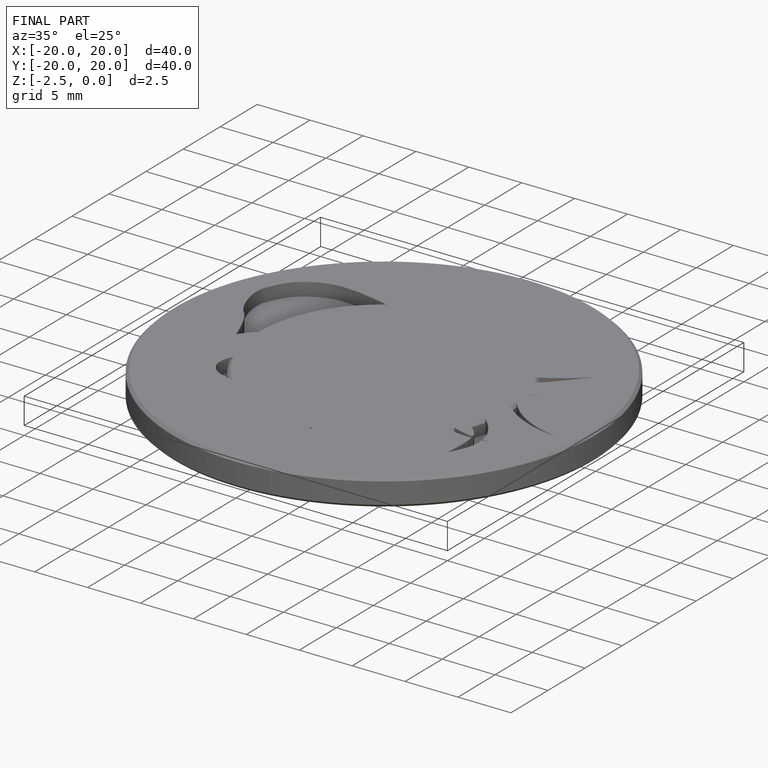
[diagram: finished part — iso view with bounding-box wireframe]
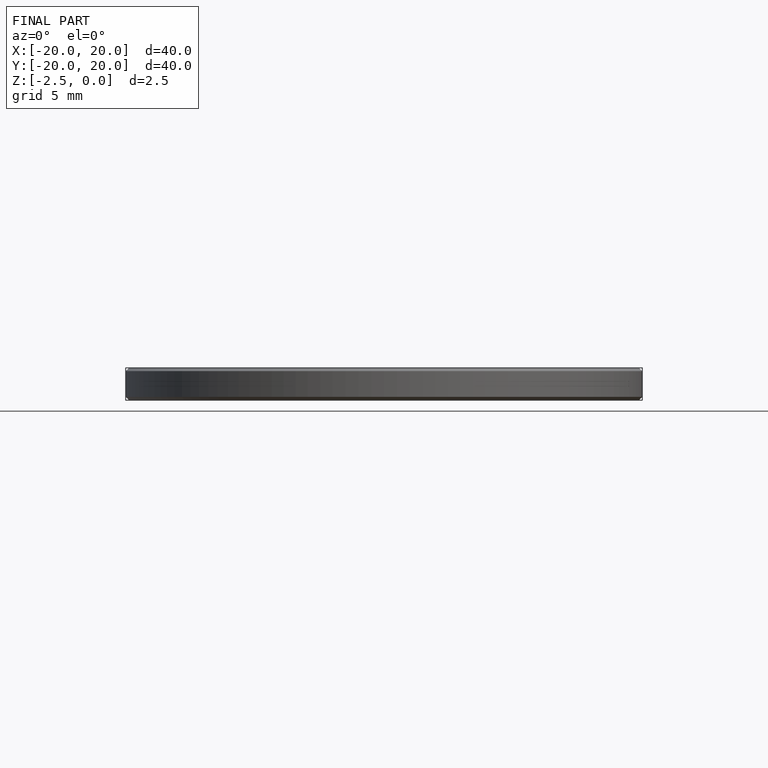
[diagram: finished part — front view with bounding-box wireframe]
